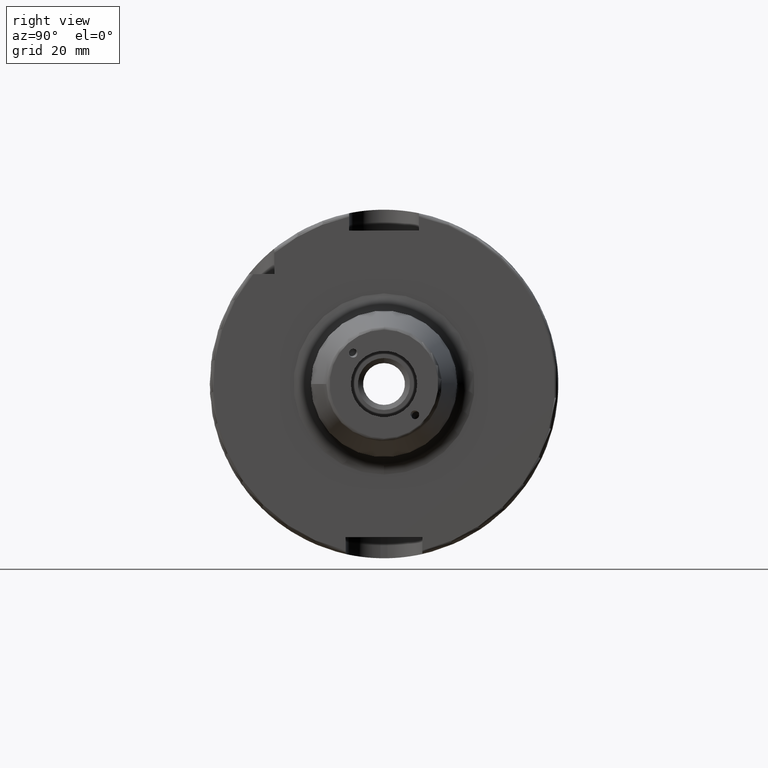
[diagram: clean part render]
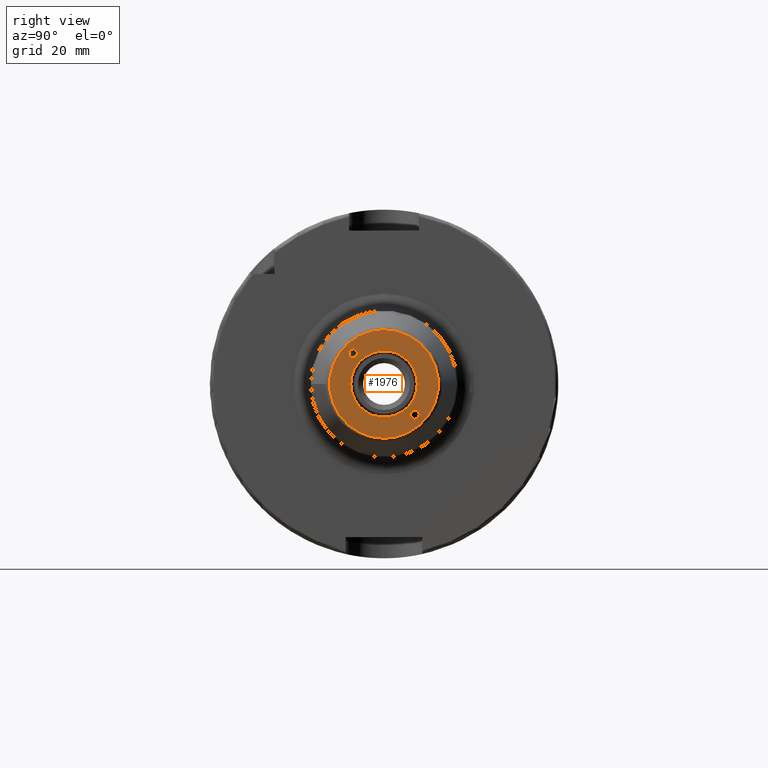
[diagram: same view with one face highlighted and labeled with its STEP entity id]
A machine part, right view. The second image highlights one B-rep face of the part: STEP entity #1976.
In plain terms, the highlighted planar face has unit normal (1, 0, 0).
Its self-contained STEP definition (entity closure, byte-faithful):
#85=FACE_BOUND('',#334,.T.);
#86=FACE_BOUND('',#335,.T.);
#87=FACE_BOUND('',#336,.T.);
#98=PLANE('',#2127);
#161=ELLIPSE('',#2115,1.25076193037353,1.25);
#162=ELLIPSE('',#2119,1.25076193037353,1.25);
#214=FACE_OUTER_BOUND('',#333,.T.);
#333=EDGE_LOOP('',(#1347));
#334=EDGE_LOOP('',(#1348));
#335=EDGE_LOOP('',(#1349));
#336=EDGE_LOOP('',(#1350));
#675=CIRCLE('',#2121,15.5756095083418);
#680=CIRCLE('',#2128,9.525);
#805=VERTEX_POINT('',#2999);
#808=VERTEX_POINT('',#3008);
#809=VERTEX_POINT('',#3012);
#813=VERTEX_POINT('',#3024);
#1010=EDGE_CURVE('',#805,#805,#161,.T.);
#1014=EDGE_CURVE('',#808,#808,#162,.T.);
#1016=EDGE_CURVE('',#809,#809,#675,.T.);
#1022=EDGE_CURVE('',#813,#813,#680,.T.);
#1347=ORIENTED_EDGE('',*,*,#1016,.F.);
#1348=ORIENTED_EDGE('',*,*,#1010,.T.);
#1349=ORIENTED_EDGE('',*,*,#1014,.T.);
#1350=ORIENTED_EDGE('',*,*,#1022,.F.);
#1976=ADVANCED_FACE('',(#214,#85,#86,#87),#98,.T.);
#2115=AXIS2_PLACEMENT_3D('',#3000,#2378,#2379);
#2119=AXIS2_PLACEMENT_3D('',#3009,#2388,#2389);
#2121=AXIS2_PLACEMENT_3D('',#3013,#2393,#2394);
#2127=AXIS2_PLACEMENT_3D('',#3023,#2406,#2407);
#2128=AXIS2_PLACEMENT_3D('',#3025,#2408,#2409);
#2378=DIRECTION('center_axis',(-1.,0.,0.));
#2379=DIRECTION('ref_axis',(0.,-0.707106781186413,0.707106781186682));
#2388=DIRECTION('center_axis',(-1.,0.,0.));
#2389=DIRECTION('ref_axis',(0.,0.707106781186413,-0.707106781186682));
#2393=DIRECTION('center_axis',(-1.,0.,0.));
#2394=DIRECTION('ref_axis',(0.,-1.,1.83697019872103E-16));
#2406=DIRECTION('center_axis',(1.,0.,0.));
#2407=DIRECTION('ref_axis',(0.,0.,-1.));
#2408=DIRECTION('center_axis',(1.,0.,0.));
#2409=DIRECTION('ref_axis',(0.,0.,-1.));
#2999=CARTESIAN_POINT('',(105.,-7.58845374160898,8.83807283449368));
#3000=CARTESIAN_POINT('Origin',(105.,-8.83883476483185,8.83883476483185));
#3008=CARTESIAN_POINT('',(105.,7.58845374160898,-8.83807283449368));
#3009=CARTESIAN_POINT('Origin',(105.,8.83883476483185,-8.83883476483184));
#3012=CARTESIAN_POINT('',(105.,-1.90746203291599E-15,15.5756095083418));
#3013=CARTESIAN_POINT('Origin',(105.,0.,0.));
#3023=CARTESIAN_POINT('Origin',(105.,9.525,0.));
#3024=CARTESIAN_POINT('',(105.,-9.525,-1.16647607618785E-15));
#3025=CARTESIAN_POINT('Origin',(105.,0.,0.));